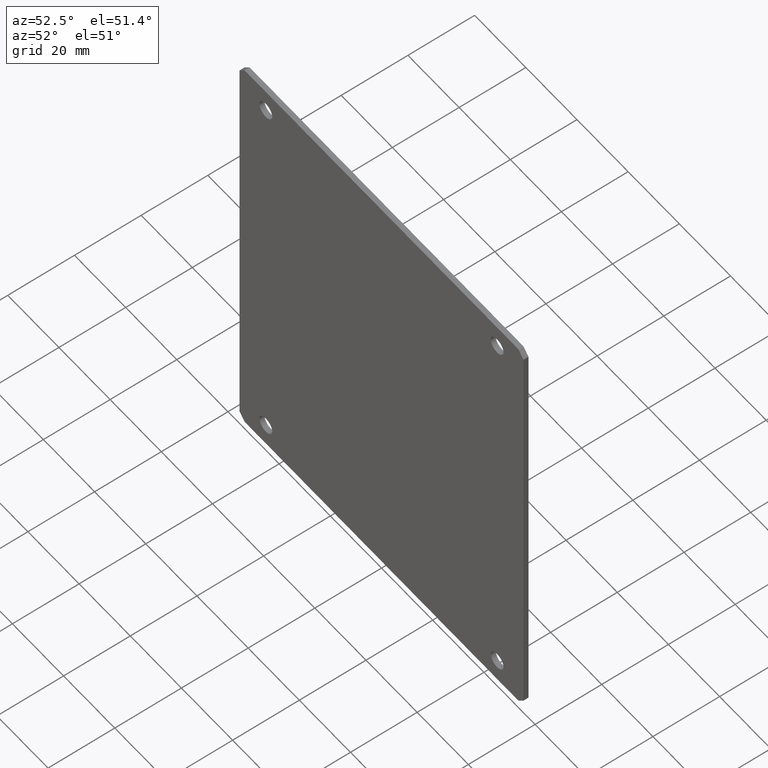
[diagram: clean part render]
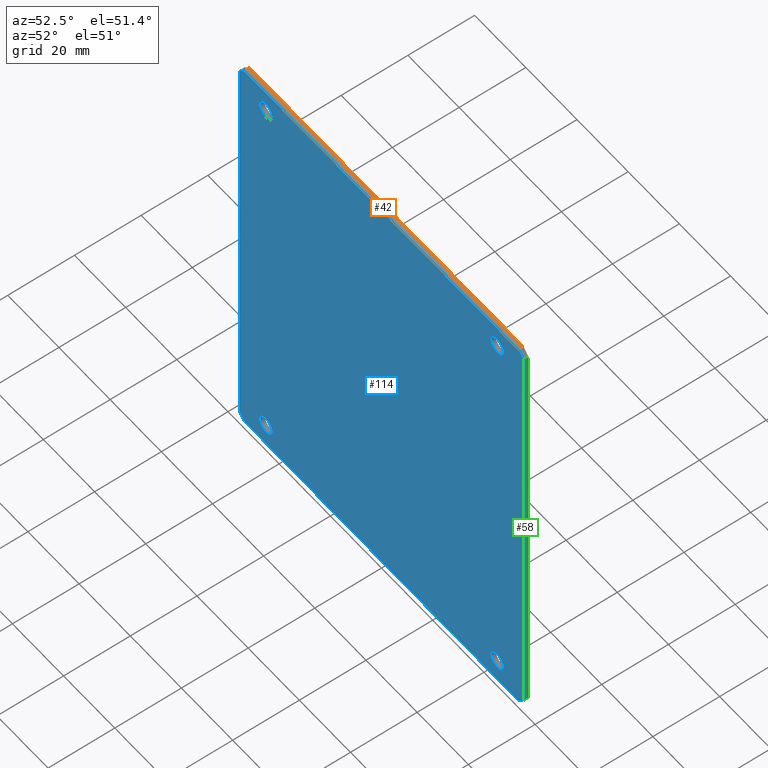
[diagram: same view with three faces highlighted in distinct colors, each labeled with its STEP entity id]
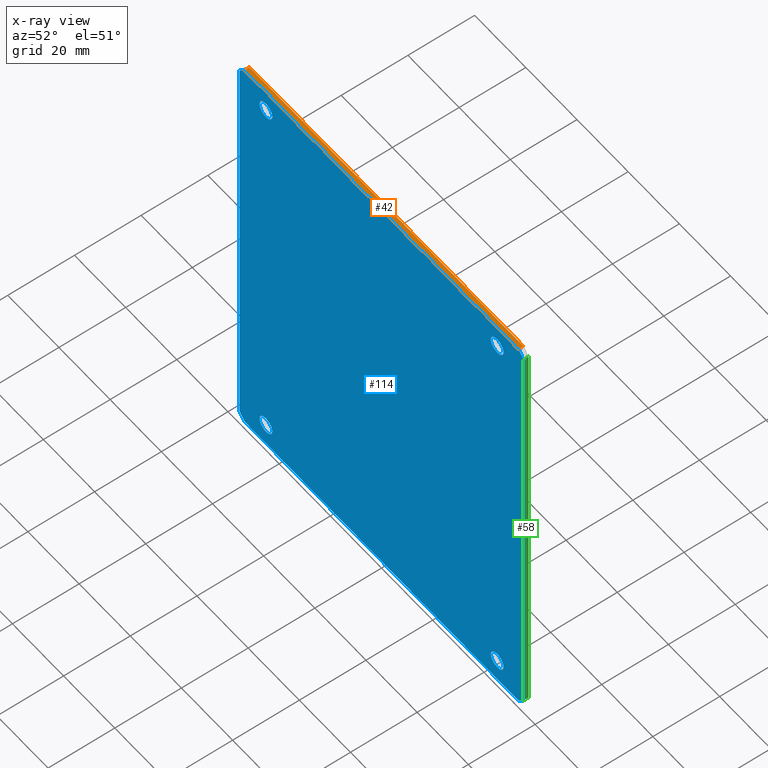
[diagram: x-ray of the same camera — body ghosted, the three highlighted faces saturated]
A machine part, auxiliary view with three faces highlighted in distinct colors.
The next image is the same camera in x-ray (body ghosted, the three faces saturated) — at least one of them is partly hidden behind the body in this view.
Their STEP definitions:

[orange] entity #42 — the highlighted planar face has unit normal (0, 0, -1).
#22 = VERTEX_POINT ( 'NONE', #367 ) ;
#42 = ADVANCED_FACE ( 'NONE', ( #284 ), #278, .F. ) ;
#43 = EDGE_LOOP ( 'NONE', ( #44, #45, #47, #48 ) ) ;
#44 = ORIENTED_EDGE ( 'NONE', *, *, #220, .T. ) ;
#45 = ORIENTED_EDGE ( 'NONE', *, *, #46, .F. ) ;
#46 = EDGE_CURVE ( 'NONE', #160, #22, #273, .T. ) ;
#47 = ORIENTED_EDGE ( 'NONE', *, *, #91, .F. ) ;
#48 = ORIENTED_EDGE ( 'NONE', *, *, #71, .T. ) ;
#71 = EDGE_CURVE ( 'NONE', #89, #221, #202, .T. ) ;
#89 = VERTEX_POINT ( 'NONE', #375 ) ;
#91 = EDGE_CURVE ( 'NONE', #89, #160, #395, .T. ) ;
#160 = VERTEX_POINT ( 'NONE', #437 ) ;
#199 = DIRECTION ( 'NONE',  ( -0.0000000000000000000, -1.000000000000000000, -0.0000000000000000000 ) ) ;
#200 = VECTOR ( 'NONE', #199, 1000.000000000000000 ) ;
#201 = CARTESIAN_POINT ( 'NONE',  ( -53.49999999999999300, 1.500000000000000000, 67.00000000000000000 ) ) ;
#202 = LINE ( 'NONE', #201, #200 ) ;
#220 = EDGE_CURVE ( 'NONE', #221, #22, #515, .T. ) ;
#221 = VERTEX_POINT ( 'NONE', #511 ) ;
#270 = DIRECTION ( 'NONE',  ( -0.0000000000000000000, -1.000000000000000000, -0.0000000000000000000 ) ) ;
#271 = VECTOR ( 'NONE', #270, 1000.000000000000000 ) ;
#272 = CARTESIAN_POINT ( 'NONE',  ( 53.49999999999999300, 1.500000000000000000, 67.00000000000000000 ) ) ;
#273 = LINE ( 'NONE', #272, #271 ) ;
#274 = DIRECTION ( 'NONE',  ( -1.000000000000000000, 0.0000000000000000000, -0.0000000000000000000 ) ) ;
#275 = DIRECTION ( 'NONE',  ( 0.0000000000000000000, 0.0000000000000000000, -1.000000000000000000 ) ) ;
#276 = CARTESIAN_POINT ( 'NONE',  ( 53.49999999999999300, 1.500000000000000000, 67.00000000000000000 ) ) ;
#277 = AXIS2_PLACEMENT_3D ( 'NONE', #276, #275, #274 ) ;
#278 = PLANE ( 'NONE',  #277 ) ;
#284 = FACE_OUTER_BOUND ( 'NONE', #43, .T. ) ;
#367 = CARTESIAN_POINT ( 'NONE',  ( 53.49999999999999300, 0.0000000000000000000, 67.00000000000000000 ) ) ;
#375 = CARTESIAN_POINT ( 'NONE',  ( -53.49999999999999300, 1.500000000000000000, 67.00000000000000000 ) ) ;
#392 = DIRECTION ( 'NONE',  ( 1.000000000000000000, -0.0000000000000000000, -0.0000000000000000000 ) ) ;
#393 = VECTOR ( 'NONE', #392, 1000.000000000000000 ) ;
#394 = CARTESIAN_POINT ( 'NONE',  ( 53.49999999999999300, 1.500000000000000000, 67.00000000000000000 ) ) ;
#395 = LINE ( 'NONE', #394, #393 ) ;
#437 = CARTESIAN_POINT ( 'NONE',  ( 53.49999999999999300, 1.500000000000000000, 67.00000000000000000 ) ) ;
#511 = CARTESIAN_POINT ( 'NONE',  ( -53.49999999999999300, 0.0000000000000000000, 67.00000000000000000 ) ) ;
#512 = DIRECTION ( 'NONE',  ( 1.000000000000000000, -0.0000000000000000000, -0.0000000000000000000 ) ) ;
#513 = VECTOR ( 'NONE', #512, 1000.000000000000000 ) ;
#514 = CARTESIAN_POINT ( 'NONE',  ( 53.49999999999999300, 0.0000000000000000000, 67.00000000000000000 ) ) ;
#515 = LINE ( 'NONE', #514, #513 ) ;

[blue] entity #114 — the highlighted planar face has unit normal (0, -1, 0).
#3 = EDGE_CURVE ( 'NONE', #31, #138, #164, .T. ) ;
#4 = EDGE_LOOP ( 'NONE', ( #5, #6 ) ) ;
#5 = ORIENTED_EDGE ( 'NONE', *, *, #37, .T. ) ;
#6 = ORIENTED_EDGE ( 'NONE', *, *, #7, .T. ) ;
#7 = EDGE_CURVE ( 'NONE', #35, #38, #322, .T. ) ;
#9 = EDGE_CURVE ( 'NONE', #10, #11, #323, .T. ) ;
#10 = VERTEX_POINT ( 'NONE', #315 ) ;
#11 = VERTEX_POINT ( 'NONE', #314 ) ;
#12 = ORIENTED_EDGE ( 'NONE', *, *, #13, .F. ) ;
#13 = EDGE_CURVE ( 'NONE', #14, #10, #313, .T. ) ;
#14 = VERTEX_POINT ( 'NONE', #309 ) ;
#15 = ORIENTED_EDGE ( 'NONE', *, *, #16, .F. ) ;
#16 = EDGE_CURVE ( 'NONE', #17, #14, #308, .T. ) ;
#17 = VERTEX_POINT ( 'NONE', #304 ) ;
#18 = ORIENTED_EDGE ( 'NONE', *, *, #19, .F. ) ;
#19 = EDGE_CURVE ( 'NONE', #20, #17, #303, .T. ) ;
#20 = VERTEX_POINT ( 'NONE', #368 ) ;
#21 = ORIENTED_EDGE ( 'NONE', *, *, #185, .F. ) ;
#22 = VERTEX_POINT ( 'NONE', #367 ) ;
#31 = VERTEX_POINT ( 'NONE', #261 ) ;
#35 = VERTEX_POINT ( 'NONE', #296 ) ;
#37 = EDGE_CURVE ( 'NONE', #38, #35, #295, .T. ) ;
#38 = VERTEX_POINT ( 'NONE', #290 ) ;
#52 = EDGE_CURVE ( 'NONE', #79, #93, #237, .T. ) ;
#53 = EDGE_LOOP ( 'NONE', ( #183, #184 ) ) ;
#60 = EDGE_CURVE ( 'NONE', #148, #151, #219, .T. ) ;
#72 = ORIENTED_EDGE ( 'NONE', *, *, #60, .T. ) ;
#73 = ORIENTED_EDGE ( 'NONE', *, *, #74, .F. ) ;
#74 = EDGE_CURVE ( 'NONE', #11, #181, #197, .T. ) ;
#75 = EDGE_LOOP ( 'NONE', ( #76, #77 ) ) ;
#76 = ORIENTED_EDGE ( 'NONE', *, *, #81, .T. ) ;
#77 = ORIENTED_EDGE ( 'NONE', *, *, #3, .T. ) ;
#79 = VERTEX_POINT ( 'NONE', #391 ) ;
#81 = EDGE_CURVE ( 'NONE', #138, #31, #389, .T. ) ;
#92 = EDGE_CURVE ( 'NONE', #93, #79, #198, .T. ) ;
#93 = VERTEX_POINT ( 'NONE', #420 ) ;
#99 = EDGE_LOOP ( 'NONE', ( #115, #72 ) ) ;
#114 = ADVANCED_FACE ( 'NONE', ( #611, #610, #609, #608, #607 ), #606, .T. ) ;
#115 = ORIENTED_EDGE ( 'NONE', *, *, #150, .T. ) ;
#138 = VERTEX_POINT ( 'NONE', #539 ) ;
#148 = VERTEX_POINT ( 'NONE', #586 ) ;
#150 = EDGE_CURVE ( 'NONE', #151, #148, #585, .T. ) ;
#151 = VERTEX_POINT ( 'NONE', #580 ) ;
#162 = CARTESIAN_POINT ( 'NONE',  ( 45.20000000000000300, 0.0000000000000000000, -59.99999999999999300 ) ) ;
#163 = AXIS2_PLACEMENT_3D ( 'NONE', #162, #325, #324 ) ;
#164 = CIRCLE ( 'NONE', #163, 2.500000000000002200 ) ;
#165 = CARTESIAN_POINT ( 'NONE',  ( -45.20000000000000300, 0.0000000000000000000, 60.00000000000000700 ) ) ;
#181 = VERTEX_POINT ( 'NONE', #529 ) ;
#183 = ORIENTED_EDGE ( 'NONE', *, *, #92, .T. ) ;
#184 = ORIENTED_EDGE ( 'NONE', *, *, #52, .T. ) ;
#185 = EDGE_CURVE ( 'NONE', #22, #20, #525, .T. ) ;
#186 = ORIENTED_EDGE ( 'NONE', *, *, #220, .F. ) ;
#192 = CARTESIAN_POINT ( 'NONE',  ( -45.20000000000000300, 0.0000000000000000000, -59.99999999999999300 ) ) ;
#193 = AXIS2_PLACEMENT_3D ( 'NONE', #192, #373, #374 ) ;
#194 = DIRECTION ( 'NONE',  ( -0.0000000000000000000, -0.0000000000000000000, 1.000000000000000000 ) ) ;
#195 = VECTOR ( 'NONE', #194, 1000.000000000000000 ) ;
#196 = CARTESIAN_POINT ( 'NONE',  ( -55.49999999999999300, 0.0000000000000000000, 65.00000000000000000 ) ) ;
#197 = LINE ( 'NONE', #196, #195 ) ;
#198 = CIRCLE ( 'NONE', #193, 2.500000000000002200 ) ;
#215 = DIRECTION ( 'NONE',  ( 0.0000000000000000000, 0.0000000000000000000, 1.000000000000000000 ) ) ;
#216 = DIRECTION ( 'NONE',  ( 0.0000000000000000000, 1.000000000000000000, 0.0000000000000000000 ) ) ;
#217 = CARTESIAN_POINT ( 'NONE',  ( 45.20000000000000300, 0.0000000000000000000, 60.00000000000000700 ) ) ;
#218 = AXIS2_PLACEMENT_3D ( 'NONE', #217, #216, #215 ) ;
#219 = CIRCLE ( 'NONE', #218, 2.500000000000009300 ) ;
#220 = EDGE_CURVE ( 'NONE', #221, #22, #515, .T. ) ;
#221 = VERTEX_POINT ( 'NONE', #511 ) ;
#222 = ORIENTED_EDGE ( 'NONE', *, *, #223, .F. ) ;
#223 = EDGE_CURVE ( 'NONE', #181, #221, #510, .T. ) ;
#234 = DIRECTION ( 'NONE',  ( 0.0000000000000000000, 0.0000000000000000000, 1.000000000000000000 ) ) ;
#235 = DIRECTION ( 'NONE',  ( 0.0000000000000000000, 1.000000000000000000, 0.0000000000000000000 ) ) ;
#236 = AXIS2_PLACEMENT_3D ( 'NONE', #241, #235, #234 ) ;
#237 = CIRCLE ( 'NONE', #236, 2.500000000000002200 ) ;
#241 = CARTESIAN_POINT ( 'NONE',  ( -45.20000000000000300, 0.0000000000000000000, -59.99999999999999300 ) ) ;
#261 = CARTESIAN_POINT ( 'NONE',  ( 45.20000000000000300, 0.0000000000000000000, -57.49999999999998600 ) ) ;
#269 = EDGE_LOOP ( 'NONE', ( #338, #12, #15, #18, #21, #186, #222, #73 ) ) ;
#290 = CARTESIAN_POINT ( 'NONE',  ( -45.20000000000000300, 0.0000000000000000000, 57.50000000000000000 ) ) ;
#291 = DIRECTION ( 'NONE',  ( 0.0000000000000000000, 0.0000000000000000000, -1.000000000000000000 ) ) ;
#292 = DIRECTION ( 'NONE',  ( -0.0000000000000000000, 1.000000000000000000, -0.0000000000000000000 ) ) ;
#293 = CARTESIAN_POINT ( 'NONE',  ( -45.20000000000000300, 0.0000000000000000000, 60.00000000000000700 ) ) ;
#294 = AXIS2_PLACEMENT_3D ( 'NONE', #293, #292, #291 ) ;
#295 = CIRCLE ( 'NONE', #294, 2.500000000000002200 ) ;
#296 = CARTESIAN_POINT ( 'NONE',  ( -45.20000000000000300, 0.0000000000000000000, 62.50000000000001400 ) ) ;
#302 = CARTESIAN_POINT ( 'NONE',  ( 55.49999999999999300, 0.0000000000000000000, 65.00000000000001400 ) ) ;
#303 = LINE ( 'NONE', #302, #370 ) ;
#304 = CARTESIAN_POINT ( 'NONE',  ( 55.49999999999999300, 0.0000000000000000000, -65.00000000000001400 ) ) ;
#305 = DIRECTION ( 'NONE',  ( -0.7071067811865500200, 0.0000000000000000000, -0.7071067811865451300 ) ) ;
#306 = VECTOR ( 'NONE', #305, 1000.000000000000100 ) ;
#307 = CARTESIAN_POINT ( 'NONE',  ( 55.49999999999999300, 0.0000000000000000000, -65.00000000000001400 ) ) ;
#308 = LINE ( 'NONE', #307, #306 ) ;
#309 = CARTESIAN_POINT ( 'NONE',  ( 53.49999999999999300, 0.0000000000000000000, -67.00000000000000000 ) ) ;
#310 = DIRECTION ( 'NONE',  ( -1.000000000000000000, 0.0000000000000000000, 0.0000000000000000000 ) ) ;
#311 = VECTOR ( 'NONE', #310, 1000.000000000000000 ) ;
#312 = CARTESIAN_POINT ( 'NONE',  ( 53.49999999999999300, 0.0000000000000000000, -67.00000000000000000 ) ) ;
#313 = LINE ( 'NONE', #312, #311 ) ;
#314 = CARTESIAN_POINT ( 'NONE',  ( -55.49999999999999300, 0.0000000000000000000, -65.00000000000000000 ) ) ;
#315 = CARTESIAN_POINT ( 'NONE',  ( -53.49999999999999300, 0.0000000000000000000, -67.00000000000000000 ) ) ;
#316 = DIRECTION ( 'NONE',  ( -0.7071067811865474600, -0.0000000000000000000, 0.7071067811865474600 ) ) ;
#317 = VECTOR ( 'NONE', #316, 1000.000000000000100 ) ;
#318 = CARTESIAN_POINT ( 'NONE',  ( -55.49999999999999300, 0.0000000000000000000, -65.00000000000000000 ) ) ;
#319 = DIRECTION ( 'NONE',  ( 0.0000000000000000000, 0.0000000000000000000, -1.000000000000000000 ) ) ;
#320 = DIRECTION ( 'NONE',  ( -0.0000000000000000000, 1.000000000000000000, -0.0000000000000000000 ) ) ;
#321 = AXIS2_PLACEMENT_3D ( 'NONE', #165, #320, #319 ) ;
#322 = CIRCLE ( 'NONE', #321, 2.500000000000002200 ) ;
#323 = LINE ( 'NONE', #318, #317 ) ;
#324 = DIRECTION ( 'NONE',  ( 0.0000000000000000000, 0.0000000000000000000, -1.000000000000000000 ) ) ;
#325 = DIRECTION ( 'NONE',  ( -0.0000000000000000000, 1.000000000000000000, -0.0000000000000000000 ) ) ;
#338 = ORIENTED_EDGE ( 'NONE', *, *, #9, .F. ) ;
#367 = CARTESIAN_POINT ( 'NONE',  ( 53.49999999999999300, 0.0000000000000000000, 67.00000000000000000 ) ) ;
#368 = CARTESIAN_POINT ( 'NONE',  ( 55.49999999999999300, 0.0000000000000000000, 65.00000000000001400 ) ) ;
#369 = DIRECTION ( 'NONE',  ( 0.0000000000000000000, 0.0000000000000000000, -1.000000000000000000 ) ) ;
#370 = VECTOR ( 'NONE', #369, 1000.000000000000000 ) ;
#373 = DIRECTION ( 'NONE',  ( 0.0000000000000000000, 1.000000000000000000, 0.0000000000000000000 ) ) ;
#374 = DIRECTION ( 'NONE',  ( 0.0000000000000000000, 0.0000000000000000000, 1.000000000000000000 ) ) ;
#387 = CARTESIAN_POINT ( 'NONE',  ( 45.20000000000000300, 0.0000000000000000000, -59.99999999999999300 ) ) ;
#388 = AXIS2_PLACEMENT_3D ( 'NONE', #387, #400, #399 ) ;
#389 = CIRCLE ( 'NONE', #388, 2.500000000000002200 ) ;
#391 = CARTESIAN_POINT ( 'NONE',  ( -45.20000000000000300, 0.0000000000000000000, -57.49999999999998600 ) ) ;
#399 = DIRECTION ( 'NONE',  ( 0.0000000000000000000, 0.0000000000000000000, -1.000000000000000000 ) ) ;
#400 = DIRECTION ( 'NONE',  ( -0.0000000000000000000, 1.000000000000000000, -0.0000000000000000000 ) ) ;
#420 = CARTESIAN_POINT ( 'NONE',  ( -45.20000000000000300, 0.0000000000000000000, -62.49999999999999300 ) ) ;
#507 = DIRECTION ( 'NONE',  ( 0.7071067811865474600, 0.0000000000000000000, 0.7071067811865474600 ) ) ;
#508 = VECTOR ( 'NONE', #507, 1000.000000000000100 ) ;
#509 = CARTESIAN_POINT ( 'NONE',  ( -55.49999999999999300, 0.0000000000000000000, 65.00000000000000000 ) ) ;
#510 = LINE ( 'NONE', #509, #508 ) ;
#511 = CARTESIAN_POINT ( 'NONE',  ( -53.49999999999999300, 0.0000000000000000000, 67.00000000000000000 ) ) ;
#512 = DIRECTION ( 'NONE',  ( 1.000000000000000000, -0.0000000000000000000, -0.0000000000000000000 ) ) ;
#513 = VECTOR ( 'NONE', #512, 1000.000000000000000 ) ;
#514 = CARTESIAN_POINT ( 'NONE',  ( 53.49999999999999300, 0.0000000000000000000, 67.00000000000000000 ) ) ;
#515 = LINE ( 'NONE', #514, #513 ) ;
#522 = DIRECTION ( 'NONE',  ( 0.7071067811865500200, -0.0000000000000000000, -0.7071067811865451300 ) ) ;
#523 = VECTOR ( 'NONE', #522, 1000.000000000000100 ) ;
#524 = CARTESIAN_POINT ( 'NONE',  ( 55.49999999999999300, 0.0000000000000000000, 65.00000000000001400 ) ) ;
#525 = LINE ( 'NONE', #524, #523 ) ;
#529 = CARTESIAN_POINT ( 'NONE',  ( -55.49999999999999300, 0.0000000000000000000, 65.00000000000000000 ) ) ;
#539 = CARTESIAN_POINT ( 'NONE',  ( 45.20000000000000300, 0.0000000000000000000, -62.49999999999999300 ) ) ;
#580 = CARTESIAN_POINT ( 'NONE',  ( 45.20000000000000300, 0.0000000000000000000, 57.50000000000000000 ) ) ;
#581 = DIRECTION ( 'NONE',  ( 0.0000000000000000000, 0.0000000000000000000, 1.000000000000000000 ) ) ;
#582 = DIRECTION ( 'NONE',  ( 0.0000000000000000000, 1.000000000000000000, 0.0000000000000000000 ) ) ;
#583 = CARTESIAN_POINT ( 'NONE',  ( 45.20000000000000300, 0.0000000000000000000, 60.00000000000000700 ) ) ;
#584 = AXIS2_PLACEMENT_3D ( 'NONE', #583, #582, #581 ) ;
#585 = CIRCLE ( 'NONE', #584, 2.500000000000009300 ) ;
#586 = CARTESIAN_POINT ( 'NONE',  ( 45.20000000000000300, 0.0000000000000000000, 62.50000000000001400 ) ) ;
#602 = DIRECTION ( 'NONE',  ( 0.0000000000000000000, -0.0000000000000000000, -1.000000000000000000 ) ) ;
#603 = DIRECTION ( 'NONE',  ( 0.0000000000000000000, -1.000000000000000000, 0.0000000000000000000 ) ) ;
#604 = CARTESIAN_POINT ( 'NONE',  ( -120.5000000000000000, 0.0000000000000000000, 0.0000000000000000000 ) ) ;
#605 = AXIS2_PLACEMENT_3D ( 'NONE', #604, #603, #602 ) ;
#606 = PLANE ( 'NONE',  #605 ) ;
#607 = FACE_BOUND ( 'NONE', #4, .T. ) ;
#608 = FACE_BOUND ( 'NONE', #75, .T. ) ;
#609 = FACE_OUTER_BOUND ( 'NONE', #269, .T. ) ;
#610 = FACE_BOUND ( 'NONE', #53, .T. ) ;
#611 = FACE_BOUND ( 'NONE', #99, .T. ) ;

[green] entity #58 — the highlighted planar face has unit normal (-1, 0, 0).
#17 = VERTEX_POINT ( 'NONE', #304 ) ;
#19 = EDGE_CURVE ( 'NONE', #20, #17, #303, .T. ) ;
#20 = VERTEX_POINT ( 'NONE', #368 ) ;
#55 = EDGE_CURVE ( 'NONE', #101, #20, #233, .T. ) ;
#58 = ADVANCED_FACE ( 'NONE', ( #229 ), #228, .F. ) ;
#59 = EDGE_LOOP ( 'NONE', ( #169, #170, #166, #167 ) ) ;
#101 = VERTEX_POINT ( 'NONE', #626 ) ;
#103 = EDGE_CURVE ( 'NONE', #101, #104, #625, .T. ) ;
#104 = VERTEX_POINT ( 'NONE', #621 ) ;
#166 = ORIENTED_EDGE ( 'NONE', *, *, #103, .F. ) ;
#167 = ORIENTED_EDGE ( 'NONE', *, *, #55, .T. ) ;
#169 = ORIENTED_EDGE ( 'NONE', *, *, #19, .T. ) ;
#170 = ORIENTED_EDGE ( 'NONE', *, *, #171, .F. ) ;
#171 = EDGE_CURVE ( 'NONE', #104, #17, #436, .T. ) ;
#224 = DIRECTION ( 'NONE',  ( 0.0000000000000000000, 0.0000000000000000000, 1.000000000000000000 ) ) ;
#225 = DIRECTION ( 'NONE',  ( -1.000000000000000000, 0.0000000000000000000, 0.0000000000000000000 ) ) ;
#226 = CARTESIAN_POINT ( 'NONE',  ( 55.49999999999999300, 1.500000000000000000, 65.00000000000001400 ) ) ;
#227 = AXIS2_PLACEMENT_3D ( 'NONE', #226, #225, #224 ) ;
#228 = PLANE ( 'NONE',  #227 ) ;
#229 = FACE_OUTER_BOUND ( 'NONE', #59, .T. ) ;
#230 = DIRECTION ( 'NONE',  ( -0.0000000000000000000, -1.000000000000000000, -0.0000000000000000000 ) ) ;
#231 = VECTOR ( 'NONE', #230, 1000.000000000000000 ) ;
#232 = CARTESIAN_POINT ( 'NONE',  ( 55.49999999999999300, 1.500000000000000000, 65.00000000000001400 ) ) ;
#233 = LINE ( 'NONE', #232, #231 ) ;
#302 = CARTESIAN_POINT ( 'NONE',  ( 55.49999999999999300, 0.0000000000000000000, 65.00000000000001400 ) ) ;
#303 = LINE ( 'NONE', #302, #370 ) ;
#304 = CARTESIAN_POINT ( 'NONE',  ( 55.49999999999999300, 0.0000000000000000000, -65.00000000000001400 ) ) ;
#368 = CARTESIAN_POINT ( 'NONE',  ( 55.49999999999999300, 0.0000000000000000000, 65.00000000000001400 ) ) ;
#369 = DIRECTION ( 'NONE',  ( 0.0000000000000000000, 0.0000000000000000000, -1.000000000000000000 ) ) ;
#370 = VECTOR ( 'NONE', #369, 1000.000000000000000 ) ;
#433 = DIRECTION ( 'NONE',  ( -0.0000000000000000000, -1.000000000000000000, -0.0000000000000000000 ) ) ;
#434 = VECTOR ( 'NONE', #433, 1000.000000000000000 ) ;
#435 = CARTESIAN_POINT ( 'NONE',  ( 55.49999999999999300, 1.500000000000000000, -65.00000000000001400 ) ) ;
#436 = LINE ( 'NONE', #435, #434 ) ;
#621 = CARTESIAN_POINT ( 'NONE',  ( 55.49999999999999300, 1.500000000000000000, -65.00000000000001400 ) ) ;
#622 = DIRECTION ( 'NONE',  ( 0.0000000000000000000, 0.0000000000000000000, -1.000000000000000000 ) ) ;
#623 = VECTOR ( 'NONE', #622, 1000.000000000000000 ) ;
#624 = CARTESIAN_POINT ( 'NONE',  ( 55.49999999999999300, 1.500000000000000000, 65.00000000000001400 ) ) ;
#625 = LINE ( 'NONE', #624, #623 ) ;
#626 = CARTESIAN_POINT ( 'NONE',  ( 55.49999999999999300, 1.500000000000000000, 65.00000000000001400 ) ) ;